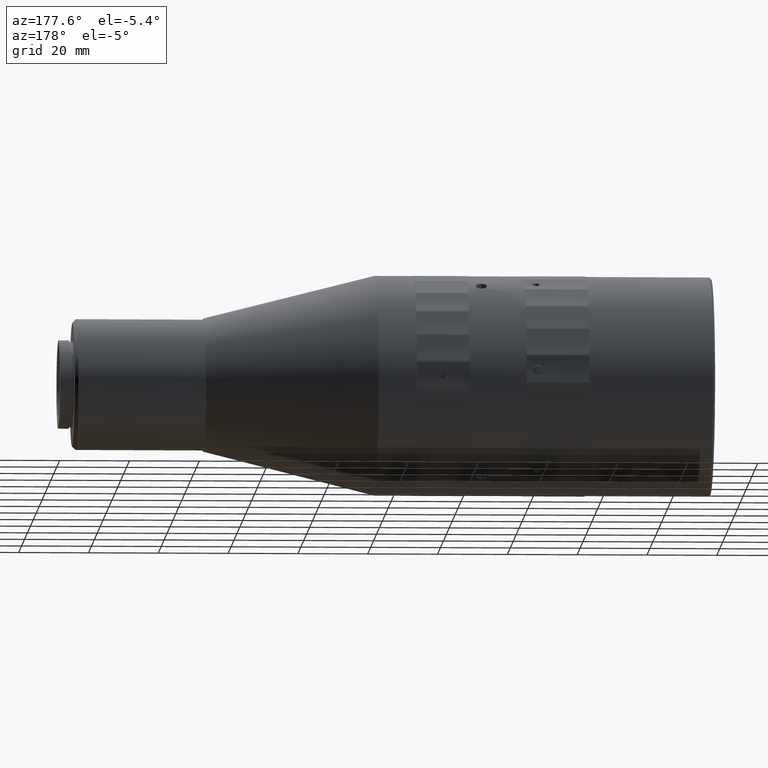
[diagram: clean part render]
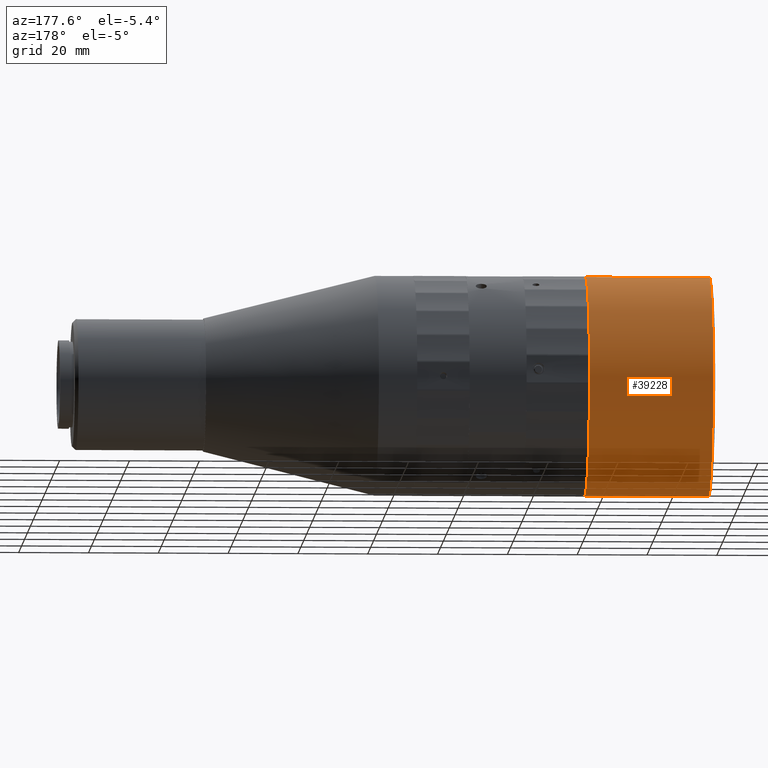
[diagram: same view with one face highlighted and labeled with its STEP entity id]
A machine part, auxiliary view. The second image highlights one B-rep face of the part: STEP entity #39228.
In plain terms, the highlighted cylindrical surface (partial cylindrical patch) has radius 31.5 mm, axis along (-1, 0, 0).
Its self-contained STEP definition (entity closure, byte-faithful):
#2328 = LINE ( 'NONE', #10570, #5117 ) ;
#3581 = DIRECTION ( 'NONE',  ( 1.000000000000000000, 0.000000000000000000, 0.000000000000000000 ) ) ;
#4847 = CARTESIAN_POINT ( 'NONE',  ( -111.6463741575532822, 4.913691000558659816, 148.3427435715927629 ) ) ;
#5117 = VECTOR ( 'NONE', #15707, 1000.000000000000000 ) ;
#10570 = CARTESIAN_POINT ( 'NONE',  ( -134.9531798767316104, 4.913691000558659816, 211.3427435716072011 ) ) ;
#11379 = CARTESIAN_POINT ( 'NONE',  ( -111.6463741575532822, 4.913691000558659816, 179.8427435715999820 ) ) ;
#11651 = DIRECTION ( 'NONE',  ( 0.000000000000000000, 0.000000000000000000, 1.000000000000000000 ) ) ;
#14688 = CIRCLE ( 'NONE', #21538, 31.50000000000721556 ) ;
#15707 = DIRECTION ( 'NONE',  ( -1.000000000000000000, 0.000000000000000000, 0.000000000000000000 ) ) ;
#17191 = VERTEX_POINT ( 'NONE', #4847 ) ;
#19554 = CYLINDRICAL_SURFACE ( 'NONE', #30506, 31.50000000000721556 ) ;
#19565 = DIRECTION ( 'NONE',  ( -1.000000000000000000, 0.000000000000000000, 0.000000000000000000 ) ) ;
#20602 = EDGE_LOOP ( 'NONE', ( #47081, #46071, #21925, #26132 ) ) ;
#21538 = AXIS2_PLACEMENT_3D ( 'NONE', #11379, #3581, #11651 ) ;
#21925 = ORIENTED_EDGE ( 'NONE', *, *, #35038, .T. ) ;
#23587 = LINE ( 'NONE', #39876, #29992 ) ;
#26132 = ORIENTED_EDGE ( 'NONE', *, *, #42876, .F. ) ;
#26779 = CARTESIAN_POINT ( 'NONE',  ( -134.9531798767316104, 4.913691000558659816, 179.8427435715999820 ) ) ;
#27688 = DIRECTION ( 'NONE',  ( -1.000000000000000000, 0.000000000000000000, 0.000000000000000000 ) ) ;
#29992 = VECTOR ( 'NONE', #19565, 1000.000000000000000 ) ;
#30506 = AXIS2_PLACEMENT_3D ( 'NONE', #26779, #39073, #31034 ) ;
#30832 = AXIS2_PLACEMENT_3D ( 'NONE', #52777, #27688, #48243 ) ;
#31034 = DIRECTION ( 'NONE',  ( 0.000000000000000000, 0.000000000000000000, 1.000000000000000000 ) ) ;
#34737 = EDGE_CURVE ( 'NONE', #51720, #17191, #23587, .T. ) ;
#35038 = EDGE_CURVE ( 'NONE', #17191, #42732, #14688, .T. ) ;
#39073 = DIRECTION ( 'NONE',  ( -1.000000000000000000, 0.000000000000000000, 0.000000000000000000 ) ) ;
#39228 = ADVANCED_FACE ( 'NONE', ( #51374 ), #19554, .T. ) ;
#39876 = CARTESIAN_POINT ( 'NONE',  ( -134.9531798767316104, 4.913691000558662481, 148.3427435715927629 ) ) ;
#42299 = EDGE_CURVE ( 'NONE', #43342, #51720, #50457, .T. ) ;
#42732 = VERTEX_POINT ( 'NONE', #45385 ) ;
#42876 = EDGE_CURVE ( 'NONE', #43342, #42732, #2328, .T. ) ;
#43342 = VERTEX_POINT ( 'NONE', #48635 ) ;
#45385 = CARTESIAN_POINT ( 'NONE',  ( -111.6463741575532822, 4.913691000558662481, 211.3427435716072011 ) ) ;
#46071 = ORIENTED_EDGE ( 'NONE', *, *, #34737, .T. ) ;
#47081 = ORIENTED_EDGE ( 'NONE', *, *, #42299, .T. ) ;
#48243 = DIRECTION ( 'NONE',  ( 0.000000000000000000, 0.000000000000000000, 1.000000000000000000 ) ) ;
#48635 = CARTESIAN_POINT ( 'NONE',  ( -76.14637415755166217, 4.913691000558659816, 211.3427435716072011 ) ) ;
#49265 = CARTESIAN_POINT ( 'NONE',  ( -76.14637415755166217, 4.913691000558662481, 148.3427435715927629 ) ) ;
#50457 = CIRCLE ( 'NONE', #30832, 31.50000000000721556 ) ;
#51374 = FACE_OUTER_BOUND ( 'NONE', #20602, .T. ) ;
#51720 = VERTEX_POINT ( 'NONE', #49265 ) ;
#52777 = CARTESIAN_POINT ( 'NONE',  ( -76.14637415755166217, 4.913691000558659816, 179.8427435715999820 ) ) ;